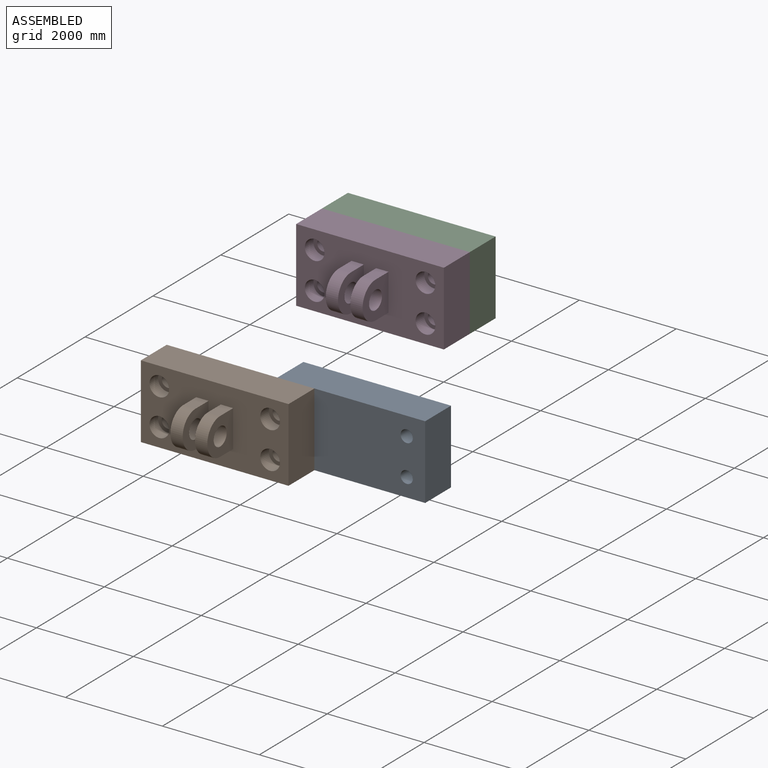
[diagram: assembled view]
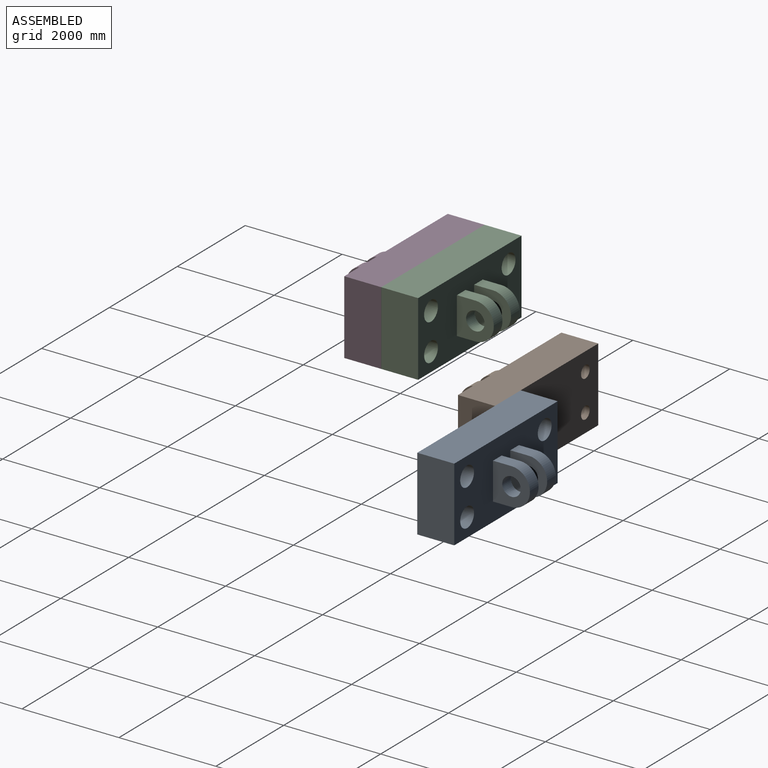
[diagram: assembled view, second angle]
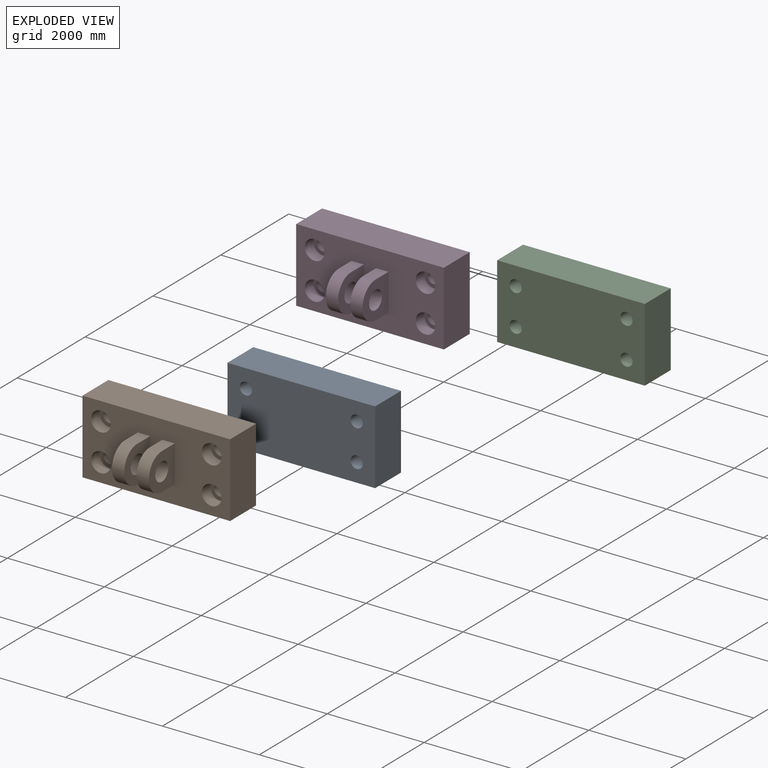
[diagram: exploded view]
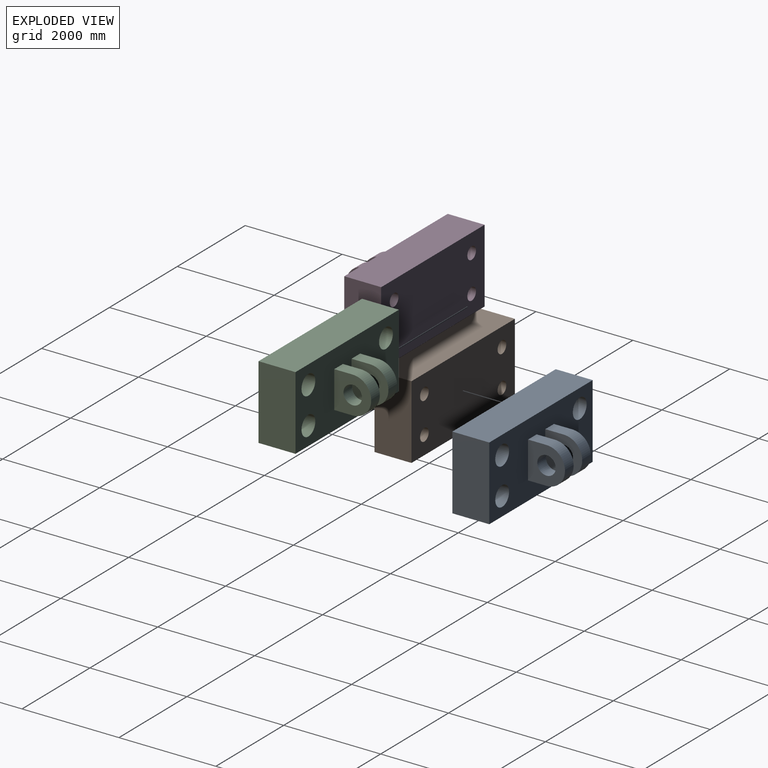
[diagram: exploded view, second angle]
ASSEMBLY  parts=4 mates=2
PART A: 30 faces, bbox 3048x1524x1524 mm
  f0: plane 762x762mm, normal (-1,0,0), area 404331.2mm2, adj f3,f5,f23,f28,f29
  f1: plane 762x762mm, normal (1,0,0), area 404331.2mm2, adj f3,f5,f23,f28,f29
  f2: plane 762x762mm, normal (-1,0,0), area 404331.2mm2, adj f4,f5,f25,f26,f27
  f3: plane 381x254mm, normal (0,0,1), area 96774mm2, adj f0,f1,f5,f29
  f4: plane 381x254mm, normal (0,0,-1), area 96774mm2, adj f2,f5,f24,f27
  f5: plane 3048x1524mm, normal (0,-1,0), area 3739187.5mm2, adj f0,f1,f2,f3,f4,f15,f16,f17
  f6: cylinder r=127mm len=508mm, axis (0,1,0), area 405366mm2, adj f7,f8
  f7: plane 406.4x406.4mm, normal (0,-1,0), area 79046.4mm2, adj f6,f21
  f8: plane 3048x1524mm, normal (0,1,0), area 4442469mm2, adj f6,f9,f11,f13,f15,f16,f17,f18
  f9: cylinder r=127mm len=508mm, axis (0,1,0), area 405366mm2, adj f8,f10
  f10: plane 406.4x406.4mm, normal (0,-1,0), area 79046.4mm2, adj f9,f22
  f11: cylinder r=127mm len=508mm, axis (0,1,0), area 405366mm2, adj f8,f12
  f12: plane 406.4x406.4mm, normal (0,-1,0), area 79046.4mm2, adj f11,f20
  f13: cylinder r=127mm len=508mm, axis (0,1,0), area 405366mm2, adj f8,f14
  f14: plane 406.4x406.4mm, normal (0,-1,0), area 79046.4mm2, adj f13,f19
  f15: plane 1524x762mm, normal (-1,0,0), area 1161288mm2, adj f5,f8,f16,f18
  f16: plane 3048x762mm, normal (0,0,-1), area 2322576mm2, adj f5,f8,f15,f17
  f17: plane 1524x762mm, normal (1,0,0), area 1161288mm2, adj f5,f8,f16,f18
  f18: plane 3048x762mm, normal (0,0,1), area 2322576mm2, adj f5,f8,f15,f17
  f19: cylinder r=203.2mm len=406.4mm, axis (0,1,0), area 324292.8mm2, adj f5,f14
  f20: cylinder r=203.2mm len=406.4mm, axis (0,1,0), area 324292.8mm2, adj f5,f12
  f21: cylinder r=203.2mm len=406.4mm, axis (0,1,0), area 324292.8mm2, adj f5,f7
  f22: cylinder r=203.2mm len=406.4mm, axis (0,1,0), area 324292.8mm2, adj f5,f10
  f23: plane 381x254mm, normal (0,0,-1), area 96774mm2, adj f0,f1,f5,f29
  f24: plane 762x762mm, normal (1,0,0), area 404331.2mm2, adj f4,f5,f25,f26,f27
  f25: plane 381x254mm, normal (0,0,1), area 96774mm2, adj f2,f5,f24,f27
  f26: cylinder r=190.5mm len=381mm, axis (1,0,0), area 304024.5mm2, adj f2,f24
  f27: cylinder r=381mm len=762mm, axis (1,0,0), area 304024.5mm2, adj f2,f4,f24,f25
  f28: cylinder r=190.5mm len=381mm, axis (1,0,0), area 304024.5mm2, adj f0,f1
  f29: cylinder r=381mm len=762mm, axis (1,0,0), area 304024.5mm2, adj f0,f1,f3,f23
PART B: same geometry as A
PART C: same geometry as A
PART D: same geometry as A
PLACE A rot(axis=(0,0,-1),180deg) t=(2597.23,1630.87,-200.13)mm fixed
PLACE B rot(axis=(-1,0,0),0deg) t=(-2573.41,1630.87,-200.13)mm
PLACE C rot(axis=(1,0,0),180deg) t=(679.73,1562.83,4762.79)mm
PLACE D t=(679.73,1562.83,3238.79)mm
MATE revolute B.f13 <-> A.f13  axis (0,1,0) through (11.91,1630.87,180.87)mm
MATE revolute C.f6 <-> D.f9  axis (0,-1,0) through (979.05,1562.83,4381.79)mm
